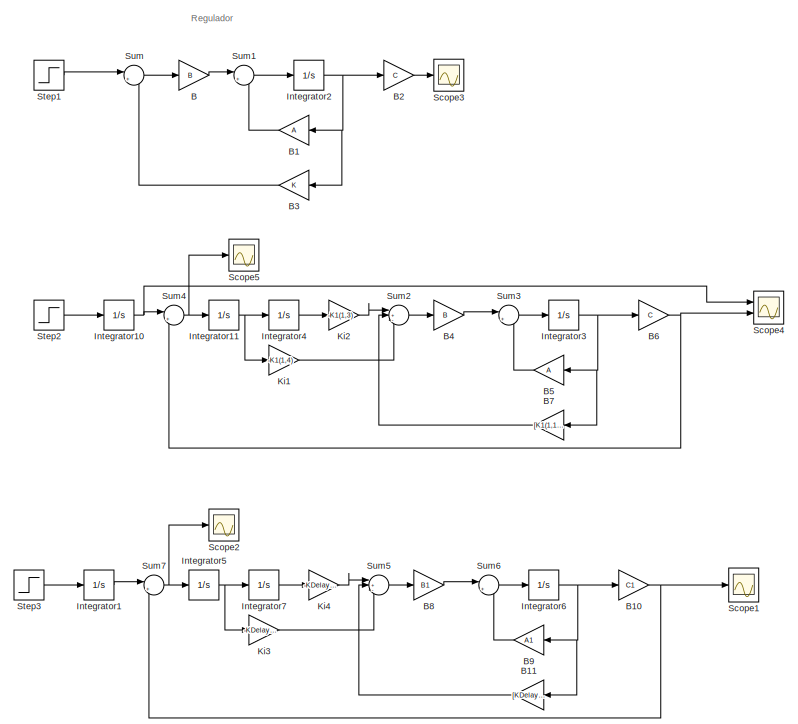
[diagram: root canvas - part 1/2, left side, full height]
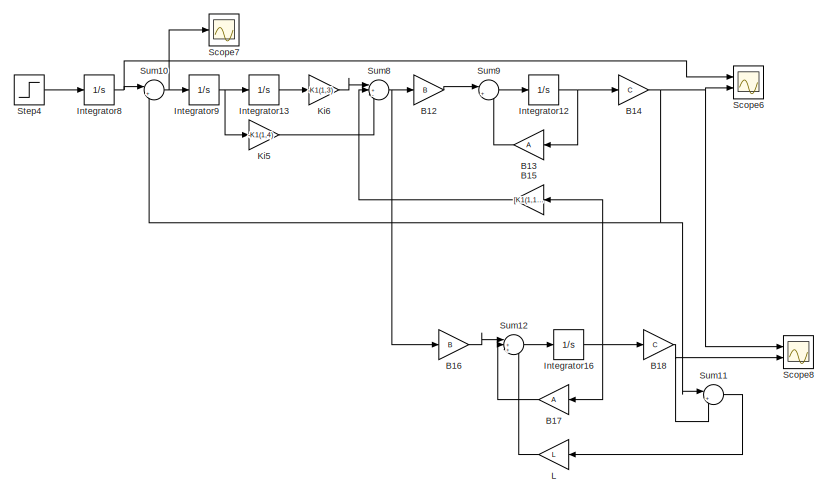
[diagram: root canvas - part 2/2, bottom right region]
MODEL slx_27a3b2bb12cc
KIND model
CONFIG AbsTol = auto
CONFIG EnableMultiTasking = off
CONFIG FixedStep = auto
CONFIG MaxStep = auto
CONFIG MinStep = auto
CONFIG RelTol = 1e-3
CONFIG SampleTimeConstraint = Unconstrained
CONFIG SolverName = VariableStepAuto
CONFIG StartTime = 0.0
CONFIG StopTime = 35
BLOCK [Gain] B
  Gain = B
  Multiplication = Matrix(K*u)
BLOCK [Gain] B1
  Gain = A
  Multiplication = Matrix(K*u)
  NameLocation = top
BLOCK [Gain] B10
  Gain = C1
  Multiplication = Matrix(K*u)
BLOCK [Gain] B11
  Gain = [KDelay(1,1),KDelay(1,2),KDelay(1,3),KDelay(1,4)]
  Multiplication = Matrix(K*u)
  NameLocation = top
BLOCK [Gain] B12
  Gain = B
  Multiplication = Matrix(K*u)
BLOCK [Gain] B13
  Gain = A
  Multiplication = Matrix(K*u)
  NameLocation = top
BLOCK [Gain] B14
  Gain = C
  Multiplication = Matrix(K*u)
BLOCK [Gain] B15
  Gain = [K1(1,1),K1(1,2)]
  Multiplication = Matrix(K*u)
  NameLocation = top
BLOCK [Gain] B16
  Gain = B
  Multiplication = Matrix(K*u)
BLOCK [Gain] B17
  Gain = A
  Multiplication = Matrix(K*u)
  NameLocation = top
BLOCK [Gain] B18
  Gain = C
  Multiplication = Matrix(K*u)
BLOCK [Gain] B2
  Gain = C
  Multiplication = Matrix(K*u)
BLOCK [Gain] B3
  Gain = K
  Multiplication = Matrix(K*u)
  NameLocation = top
BLOCK [Gain] B4
  Gain = B
  Multiplication = Matrix(K*u)
BLOCK [Gain] B5
  Gain = A
  Multiplication = Matrix(K*u)
  NameLocation = top
BLOCK [Gain] B6
  Gain = C
  Multiplication = Matrix(K*u)
BLOCK [Gain] B7
  Gain = [K1(1,1),K1(1,2)]
  Multiplication = Matrix(K*u)
  NameLocation = top
BLOCK [Gain] B8
  Gain = B1
  Multiplication = Matrix(K*u)
BLOCK [Gain] B9
  Gain = A1
  Multiplication = Matrix(K*u)
  NameLocation = top
BLOCK [Integrator] Integrator1
  Ports = [1, 1]
BLOCK [Integrator] Integrator10
  Ports = [1, 1]
BLOCK [Integrator] Integrator11
  Ports = [1, 1]
BLOCK [Integrator] Integrator12
  Ports = [1, 1]
BLOCK [Integrator] Integrator13
  Ports = [1, 1]
BLOCK [Integrator] Integrator16
  Ports = [1, 1]
BLOCK [Integrator] Integrator2
  Ports = [1, 1]
BLOCK [Integrator] Integrator3
  Ports = [1, 1]
BLOCK [Integrator] Integrator4
  Ports = [1, 1]
BLOCK [Integrator] Integrator5
  Ports = [1, 1]
BLOCK [Integrator] Integrator6
  Ports = [1, 1]
BLOCK [Integrator] Integrator7
  Ports = [1, 1]
BLOCK [Integrator] Integrator8
  Ports = [1, 1]
BLOCK [Integrator] Integrator9
  Ports = [1, 1]
BLOCK [Gain] Ki1
  Gain = -K1(1,4)
  Multiplication = Matrix(K*u)
BLOCK [Gain] Ki2
  Gain = -K1(1,3)
  Multiplication = Matrix(K*u)
BLOCK [Gain] Ki3
  Gain = -KDelay(1,6)
  Multiplication = Matrix(K*u)
BLOCK [Gain] Ki4
  Gain = -KDelay(1,5)
  Multiplication = Matrix(K*u)
BLOCK [Gain] Ki5
  Gain = -K1(1,4)
  Multiplication = Matrix(K*u)
BLOCK [Gain] Ki6
  Gain = -K1(1,3)
  Multiplication = Matrix(K*u)
BLOCK [Gain] L
  Gain = L
  Multiplication = Matrix(K*u)
  NameLocation = top
BLOCK [Scope] Scope1
  Floating = off
  NumInputPorts = 1
  Ports = [1]
  ScopeSpecificationString = Simulink.scopes.TimeScopeBlockCfg('CurrentConfiguration', extmgr.ConfigurationSet(extmgr.Configuration('Core','General UI',true),extmgr.Configuration('Core','Source UI',true),extmgr.Configuration('Sources','WiredSimulink',true,'DataLoggingVariableName','ScopeData3'),extmgr.Configuration('Visuals','Time Domain',true,'SerializedDisplays',{struct('MinYLimReal','-3.65904','MaxYLimReal','32.93137','YLa...<+1398ch>
BLOCK [Scope] Scope2
  Floating = off
  NumInputPorts = 1
  Ports = [1]
  ScopeSpecificationString = Simulink.scopes.TimeScopeBlockCfg('CurrentConfiguration', extmgr.ConfigurationSet(extmgr.Configuration('Core','General UI',true),extmgr.Configuration('Core','Source UI',true),extmgr.Configuration('Sources','WiredSimulink',true,'DataLoggingVariableName','ScopeData4'),extmgr.Configuration('Visuals','Time Domain',true,'SerializedDisplays',{struct('MinYLimReal','-0.71596','MaxYLimReal','6.44363','YLab...<+1394ch>
BLOCK [Scope] Scope3
  Floating = off
  NumInputPorts = 1
  Ports = [1]
  ScopeSpecificationString = Simulink.scopes.TimeScopeBlockCfg('CurrentConfiguration', extmgr.ConfigurationSet(extmgr.Configuration('Core','General UI',true),extmgr.Configuration('Core','Source UI',true),extmgr.Configuration('Sources','WiredSimulink',true),extmgr.Configuration('Visuals','Time Domain',true,'SerializedDisplays',{struct('MinYLimReal','-3.89529','MaxYLimReal','35.05763','YLabelReal','','MinYLimMag','0.00000','Max...<+1358ch>
BLOCK [Scope] Scope4
  Floating = off
  NumInputPorts = 2
  Ports = [2]
  ScopeSpecificationString = Simulink.scopes.TimeScopeBlockCfg('CurrentConfiguration', extmgr.ConfigurationSet(extmgr.Configuration('Core','General UI',true),extmgr.Configuration('Core','Source UI',true),extmgr.Configuration('Sources','WiredSimulink',true,'DataLoggingVariableName','ScopeData1'),extmgr.Configuration('Visuals','Time Domain',true,'SerializedDisplays',{struct('MinYLimReal','-4.375','MaxYLimReal','39.375','YLabelR...<+1399ch>
BLOCK [Scope] Scope5
  Floating = off
  NumInputPorts = 1
  Ports = [1]
  ScopeSpecificationString = Simulink.scopes.TimeScopeBlockCfg('CurrentConfiguration', extmgr.ConfigurationSet(extmgr.Configuration('Core','General UI',true),extmgr.Configuration('Core','Source UI',true),extmgr.Configuration('Sources','WiredSimulink',true,'DataLoggingVariableName','ScopeData2'),extmgr.Configuration('Visuals','Time Domain',true,'SerializedDisplays',{struct('MinYLimReal','-0.48187','MaxYLimReal','4.3368','YLabe...<+1390ch>
BLOCK [Scope] Scope6
  Floating = off
  NumInputPorts = 2
  Ports = [2]
  ScopeSpecificationString = Simulink.scopes.TimeScopeBlockCfg('CurrentConfiguration', extmgr.ConfigurationSet(extmgr.Configuration('Core','General UI',true),extmgr.Configuration('Core','Source UI',true),extmgr.Configuration('Sources','WiredSimulink',true,'DataLoggingVariableName','ScopeData5'),extmgr.Configuration('Visuals','Time Domain',true,'SerializedDisplays',{struct('MinYLimReal','-4.375','MaxYLimReal','39.375','YLabelR...<+1399ch>
BLOCK [Scope] Scope7
  Floating = off
  NumInputPorts = 1
  Ports = [1]
  ScopeSpecificationString = Simulink.scopes.TimeScopeBlockCfg('CurrentConfiguration', extmgr.ConfigurationSet(extmgr.Configuration('Core','General UI',true),extmgr.Configuration('Core','Source UI',true),extmgr.Configuration('Sources','WiredSimulink',true,'DataLoggingVariableName','ScopeData6'),extmgr.Configuration('Visuals','Time Domain',true,'SerializedDisplays',{struct('MinYLimReal','-0.4814','MaxYLimReal','4.33263','YLabe...<+1392ch>
BLOCK [Scope] Scope8
  Floating = off
  NumInputPorts = 2
  Ports = [2]
  ScopeSpecificationString = Simulink.scopes.TimeScopeBlockCfg('CurrentConfiguration', extmgr.ConfigurationSet(extmgr.Configuration('Core','General UI',true),extmgr.Configuration('Core','Source UI',true),extmgr.Configuration('Sources','WiredSimulink',true,'DataLoggingVariableName','ScopeData7'),extmgr.Configuration('Visuals','Time Domain',true,'SerializedDisplays',{struct('MinYLimReal','-4.37318','MaxYLimReal','39.35859','YLa...<+1429ch>
BLOCK [Step] Step1
  SampleTime = 0
  Time = 0
BLOCK [Step] Step2
  SampleTime = 0
  Time = 0
BLOCK [Step] Step3
  SampleTime = 0
  Time = 0
BLOCK [Step] Step4
  SampleTime = 0
  Time = 0
BLOCK [Sum] Sum
  Inputs = |+-
  Ports = [2, 1]
BLOCK [Sum] Sum1
  Inputs = |++
  Ports = [2, 1]
BLOCK [Sum] Sum10
  Inputs = |+-
  Ports = [2, 1]
BLOCK [Sum] Sum11
  Inputs = |+-
  Ports = [2, 1]
BLOCK [Sum] Sum12
  Inputs = |+++
  Ports = [3, 1]
BLOCK [Sum] Sum2
  Inputs = |+-+
  Ports = [3, 1]
BLOCK [Sum] Sum3
  Inputs = |++
  Ports = [2, 1]
BLOCK [Sum] Sum4
  Inputs = |+-
  Ports = [2, 1]
BLOCK [Sum] Sum5
  Inputs = |+-+
  Ports = [3, 1]
BLOCK [Sum] Sum6
  Inputs = |++
  Ports = [2, 1]
BLOCK [Sum] Sum7
  Inputs = |+-
  Ports = [2, 1]
BLOCK [Sum] Sum8
  Inputs = |+-+
  Ports = [3, 1]
BLOCK [Sum] Sum9
  Inputs = |++
  Ports = [2, 1]
ANNOTATION (root): Regulador
NET B10:1 -> Scope1:1, Sum7:2
LINE B11:1 -> Sum5:2
LINE B12:1 -> Sum9:1
LINE B13:1 -> Sum9:2
NET B14:1 -> Scope6:2, Scope8:1, Sum10:2, Sum11:1
LINE B15:1 -> Sum8:2
LINE B16:1 -> Sum12:1
LINE B17:1 -> Sum12:2
NET B18:1 -> Scope8:2, Sum11:2
LINE B1:1 -> Sum1:2
LINE B2:1 -> Scope3:1
LINE B3:1 -> Sum:2
LINE B4:1 -> Sum3:1
LINE B5:1 -> Sum3:2
NET B6:1 -> Scope4:2, Sum4:2
LINE B7:1 -> Sum2:2
LINE B8:1 -> Sum6:1
LINE B9:1 -> Sum6:2
LINE B:1 -> Sum1:1
NET Integrator10:1 -> Scope4:1, Sum4:1
NET Integrator11:1 -> Integrator4:1, Ki1:1
NET Integrator12:1 -> B13:1, B14:1
LINE Integrator13:1 -> Ki6:1
NET Integrator16:1 -> B15:1, B17:1, B18:1
LINE Integrator1:1 -> Sum7:1
NET Integrator2:1 -> B1:1, B2:1, B3:1
NET Integrator3:1 -> B5:1, B6:1, B7:1
LINE Integrator4:1 -> Ki2:1
NET Integrator5:1 -> Integrator7:1, Ki3:1
NET Integrator6:1 -> B10:1, B11:1, B9:1
LINE Integrator7:1 -> Ki4:1
NET Integrator8:1 -> Scope6:1, Sum10:1
NET Integrator9:1 -> Integrator13:1, Ki5:1
LINE Ki1:1 -> Sum2:3
LINE Ki2:1 -> Sum2:1
LINE Ki3:1 -> Sum5:3
LINE Ki4:1 -> Sum5:1
LINE Ki5:1 -> Sum8:3
LINE Ki6:1 -> Sum8:1
LINE L:1 -> Sum12:3
LINE Step1:1 -> Sum:1
LINE Step2:1 -> Integrator10:1
LINE Step3:1 -> Integrator1:1
LINE Step4:1 -> Integrator8:1
NET Sum10:1 -> Integrator9:1, Scope7:1
LINE Sum11:1 -> L:1
LINE Sum12:1 -> Integrator16:1
LINE Sum1:1 -> Integrator2:1
LINE Sum2:1 -> B4:1
LINE Sum3:1 -> Integrator3:1
NET Sum4:1 -> Integrator11:1, Scope5:1
LINE Sum5:1 -> B8:1
LINE Sum6:1 -> Integrator6:1
NET Sum7:1 -> Integrator5:1, Scope2:1
NET Sum8:1 -> B12:1, B16:1
LINE Sum9:1 -> Integrator12:1
LINE Sum:1 -> B:1
note: NET lines group one-source signal fan-out (src -> all destinations, sorted); 1:1 wires keep LINE
